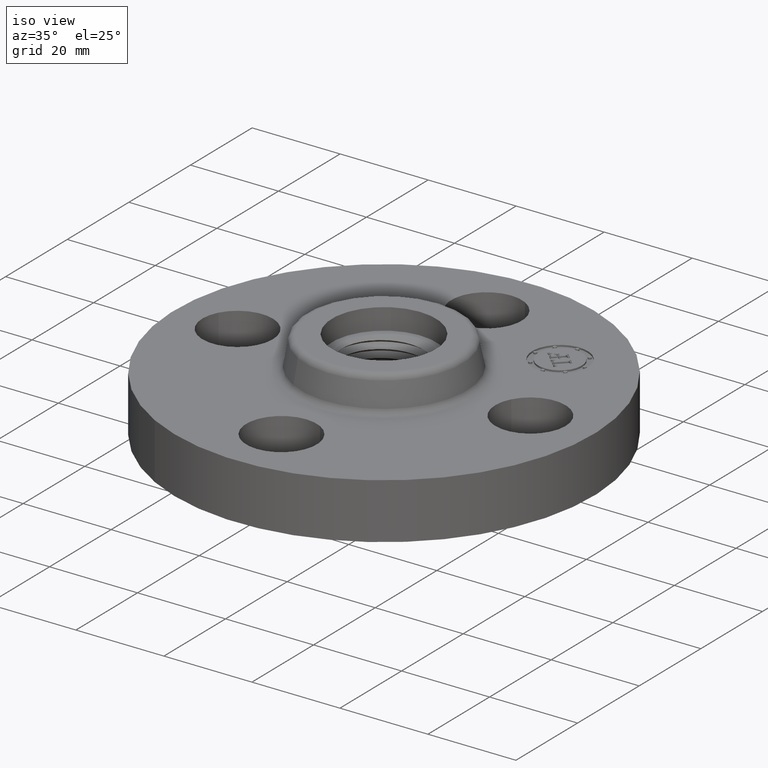
[diagram: clean part render]
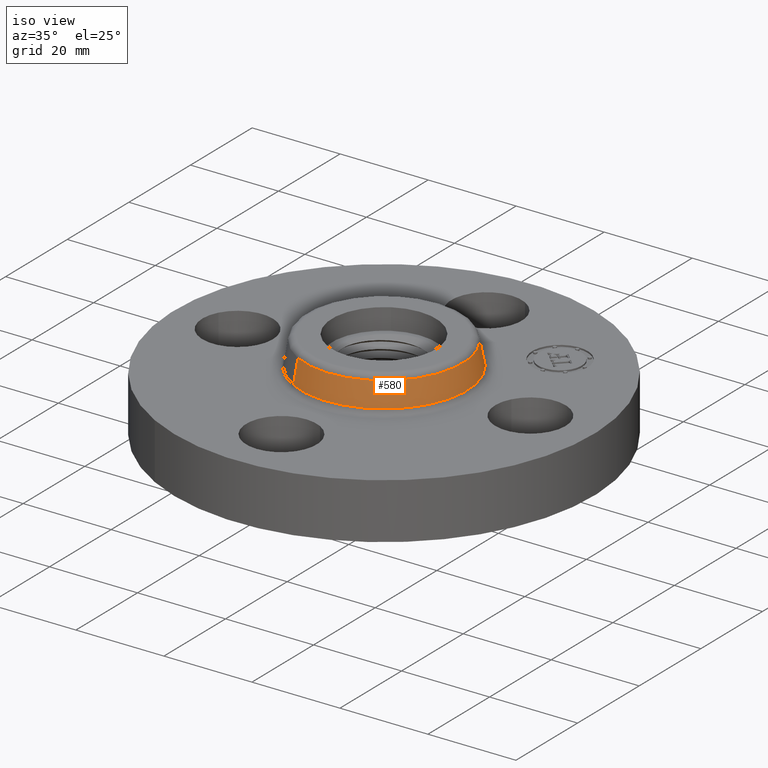
[diagram: same view with one face highlighted and labeled with its STEP entity id]
A machine part, iso view. The second image highlights one B-rep face of the part: STEP entity #580.
In plain terms, the highlighted conical surface has half-angle 10 deg.
Its self-contained STEP definition (entity closure, byte-faithful):
#516=AXIS2_PLACEMENT_3D('Circle Axis2P3D',#514,#515,$) ;
#553=AXIS2_PLACEMENT_3D('Cone Axis2P3D',#550,#551,#552) ;
#564=AXIS2_PLACEMENT_3D('Circle Axis2P3D',#562,#563,$) ;
#511=CARTESIAN_POINT('Vertex',(0.355377782267,0.650514667009,0.549581109342)) ;
#514=CARTESIAN_POINT('Axis2P3D Location',(0.,0.,0.549581109342)) ;
#518=CARTESIAN_POINT('Vertex',(-0.355377782267,-0.650514667009,0.549581109342)) ;
#550=CARTESIAN_POINT('Axis2P3D Location',(0.,0.,0.760418890663)) ;
#555=CARTESIAN_POINT('Line Origine',(0.346466127012,0.634201991484,0.655000000003)) ;
#559=CARTESIAN_POINT('Vertex',(0.337554471756,0.617889315958,0.760418890663)) ;
#562=CARTESIAN_POINT('Axis2P3D Location',(0.,0.,0.760418890663)) ;
#566=CARTESIAN_POINT('Vertex',(-0.337554471756,-0.617889315958,0.760418890663)) ;
#569=CARTESIAN_POINT('Line Origine',(-0.346466127012,-0.634201991484,0.655000000003)) ;
#515=DIRECTION('Axis2P3D Direction',(0.,0.,-0.0393700787402)) ;
#551=DIRECTION('Axis2P3D Direction',(0.,0.,-0.0393700787402)) ;
#552=DIRECTION('Axis2P3D XDirection',(-0.0188750212049,-0.0345504945626,0.)) ;
#556=DIRECTION('Vector Direction',(0.00327761303565,0.00599963041829,-0.03877195878)) ;
#563=DIRECTION('Axis2P3D Direction',(0.,0.,-0.0393700787402)) ;
#570=DIRECTION('Vector Direction',(-0.00327761303565,-0.00599963041829,-0.03877195878)) ;
#557=VECTOR('Line Direction',#556,0.0393700787402) ;
#571=VECTOR('Line Direction',#570,0.0393700787402) ;
#575=ORIENTED_EDGE('',*,*,#520,.F.) ;
#576=ORIENTED_EDGE('',*,*,#561,.T.) ;
#577=ORIENTED_EDGE('',*,*,#568,.T.) ;
#578=ORIENTED_EDGE('',*,*,#573,.F.) ;
#580=ADVANCED_FACE('PartBody',(#579),#554,.T.) ;
#517=CIRCLE('generated circle',#516,0.741257512693) ;
#565=CIRCLE('generated circle',#564,0.704081123293) ;
#554=CONICAL_SURFACE('Cone',#553,0.704081123293,0.174532925199) ;
#520=EDGE_CURVE('',#512,#519,#517,.T.) ;
#561=EDGE_CURVE('',#512,#560,#558,.F.) ;
#568=EDGE_CURVE('',#560,#567,#565,.T.) ;
#573=EDGE_CURVE('',#519,#567,#572,.F.) ;
#574=EDGE_LOOP('',(#575,#576,#577,#578)) ;
#579=FACE_OUTER_BOUND('',#574,.T.) ;
#558=LINE('Line',#555,#557) ;
#572=LINE('Line',#569,#571) ;
#512=VERTEX_POINT('',#511) ;
#519=VERTEX_POINT('',#518) ;
#560=VERTEX_POINT('',#559) ;
#567=VERTEX_POINT('',#566) ;